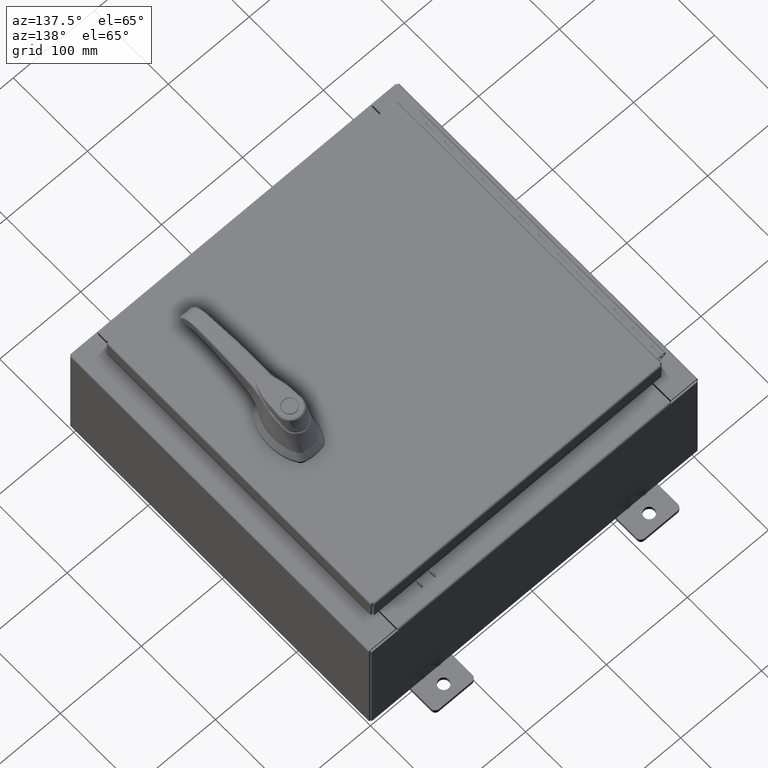
[diagram: clean part render]
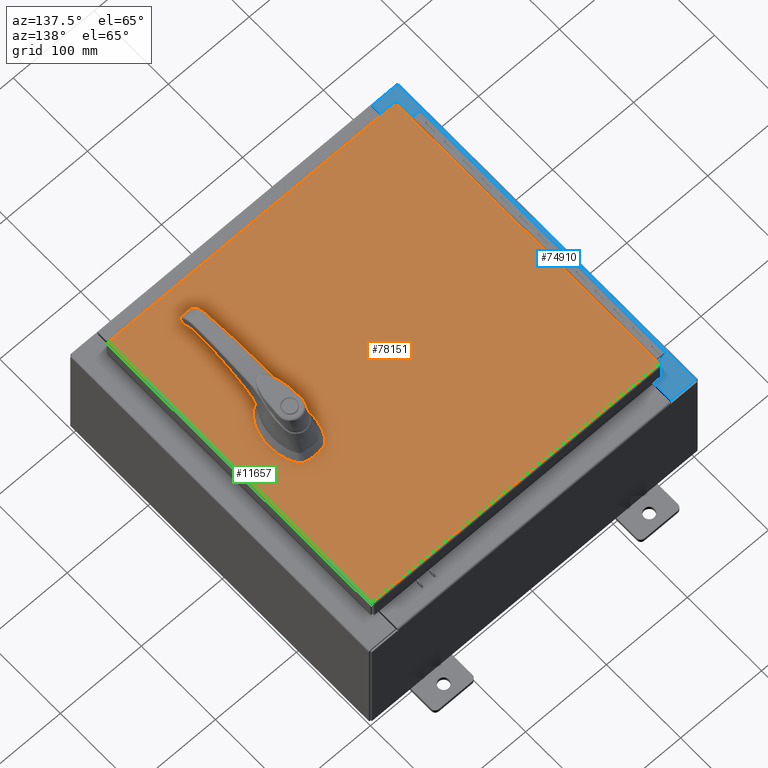
[diagram: same view with three faces highlighted in distinct colors, each labeled with its STEP entity id]
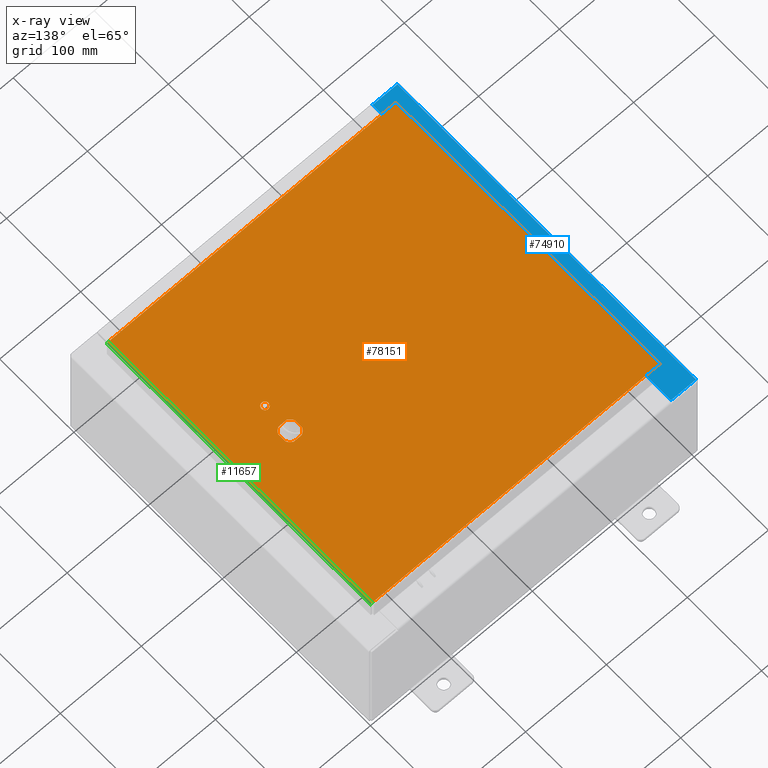
[diagram: x-ray of the same camera — body ghosted, the three highlighted faces saturated]
A machine part, auxiliary view with three faces highlighted in distinct colors.
The next image is the same camera in x-ray (body ghosted, the three faces saturated) — at least one of them is partly hidden behind the body in this view.
Their STEP definitions:

[orange] entity #78151 — the highlighted planar face has unit normal (0, 0, -1).
#1261 = EDGE_CURVE ( 'NONE', #103025, #10174, #66585, .T. ) ;
#1681 = DIRECTION ( 'NONE',  ( -1.000000000000000000, 0.0000000000000000000, -0.0000000000000000000 ) ) ;
#5276 = DIRECTION ( 'NONE',  ( 0.0000000000000000000, 1.000000000000000000, 0.0000000000000000000 ) ) ;
#5418 = DIRECTION ( 'NONE',  ( 1.000000000000000000, 0.0000000000000000000, 0.0000000000000000000 ) ) ;
#7371 = EDGE_CURVE ( 'NONE', #96301, #57104, #91769, .T. ) ;
#8099 = CARTESIAN_POINT ( 'NONE',  ( -6.990300000000001300, -7.006300000000000400, -2.219626494852214000E-016 ) ) ;
#8550 = VERTEX_POINT ( 'NONE', #89256 ) ;
#10174 = VERTEX_POINT ( 'NONE', #8099 ) ;
#10182 = VECTOR ( 'NONE', #23121, 39.37007874015748100 ) ;
#12258 = CARTESIAN_POINT ( 'NONE',  ( 4.778227370756312100, 0.4029999999999252000, 0.0000000000000000000 ) ) ;
#12527 = CARTESIAN_POINT ( 'NONE',  ( 6.990299999999998600, 7.006300000000000400, -2.219626494852214000E-016 ) ) ;
#13181 = CARTESIAN_POINT ( 'NONE',  ( -6.990300000000001300, 7.006300000000000400, 3.414809992080329000E-016 ) ) ;
#15286 = CARTESIAN_POINT ( 'NONE',  ( 4.980999999999927900, 0.0000000000000000000, 0.0000000000000000000 ) ) ;
#16409 = CIRCLE ( 'NONE', #16918, 0.4499999999999156900 ) ;
#16428 = CIRCLE ( 'NONE', #94112, 0.4499999999999156900 ) ;
#16918 = AXIS2_PLACEMENT_3D ( 'NONE', #104629, #55108, #5418 ) ;
#17763 = CARTESIAN_POINT ( 'NONE',  ( 4.377772629243692900, -0.4029999999999252000, 0.0000000000000000000 ) ) ;
#18027 = CARTESIAN_POINT ( 'NONE',  ( 4.578000000000002100, 0.0000000000000000000, 0.0000000000000000000 ) ) ;
#18421 = CIRCLE ( 'NONE', #45582, 0.4499999999999156900 ) ;
#18564 = EDGE_CURVE ( 'NONE', #34445, #83577, #27923, .T. ) ;
#22321 = EDGE_CURVE ( 'NONE', #8550, #25027, #18421, .T. ) ;
#22485 = EDGE_CURVE ( 'NONE', #25027, #66423, #98766, .T. ) ;
#22813 = CARTESIAN_POINT ( 'NONE',  ( 4.578000000000002100, -1.338000000000000100, 0.0000000000000000000 ) ) ;
#23121 = DIRECTION ( 'NONE',  ( 0.0000000000000000000, -1.000000000000000000, 0.0000000000000000000 ) ) ;
#25027 = VERTEX_POINT ( 'NONE', #17763 ) ;
#25055 = VECTOR ( 'NONE', #72100, 39.37007874015748100 ) ;
#26379 = DIRECTION ( 'NONE',  ( 1.000000000000000000, 0.0000000000000000000, 0.0000000000000000000 ) ) ;
#27923 = LINE ( 'NONE', #63294, #52585 ) ;
#29633 = EDGE_LOOP ( 'NONE', ( #60484, #36267, #40058, #63110, #46989, #83723, #85201, #31767 ) ) ;
#30257 = LINE ( 'NONE', #88685, #25055 ) ;
#31024 = ORIENTED_EDGE ( 'NONE', *, *, #91734, .T. ) ;
#31218 = DIRECTION ( 'NONE',  ( 1.000000000000000000, 0.0000000000000000000, 0.0000000000000000000 ) ) ;
#31726 = DIRECTION ( 'NONE',  ( -0.0000000000000000000, 0.0000000000000000000, 1.000000000000000000 ) ) ;
#31767 = ORIENTED_EDGE ( 'NONE', *, *, #35734, .F. ) ;
#34445 = VERTEX_POINT ( 'NONE', #78375 ) ;
#34709 = CARTESIAN_POINT ( 'NONE',  ( 0.0000000000000000000, 0.0000000000000000000, 0.0000000000000000000 ) ) ;
#35734 = EDGE_CURVE ( 'NONE', #70099, #93975, #16428, .T. ) ;
#36267 = ORIENTED_EDGE ( 'NONE', *, *, #45862, .F. ) ;
#36738 = VERTEX_POINT ( 'NONE', #75790 ) ;
#39261 = CARTESIAN_POINT ( 'NONE',  ( 4.749500000000002100, -1.338000000000000100, 0.0000000000000000000 ) ) ;
#39337 = CIRCLE ( 'NONE', #44304, 0.4499999999999156900 ) ;
#39825 = CARTESIAN_POINT ( 'NONE',  ( 4.578000000000002100, 0.0000000000000000000, 0.0000000000000000000 ) ) ;
#40058 = ORIENTED_EDGE ( 'NONE', *, *, #22485, .F. ) ;
#40138 = VERTEX_POINT ( 'NONE', #53096 ) ;
#40231 = CARTESIAN_POINT ( 'NONE',  ( 4.175000000000076200, 0.2002273707563079800, 0.0000000000000000000 ) ) ;
#40900 = DIRECTION ( 'NONE',  ( 1.000000000000000000, 0.0000000000000000000, 0.0000000000000000000 ) ) ;
#44304 = AXIS2_PLACEMENT_3D ( 'NONE', #47098, #104913, #55409 ) ;
#44850 = VERTEX_POINT ( 'NONE', #40231 ) ;
#45582 = AXIS2_PLACEMENT_3D ( 'NONE', #39825, #97663, #48190 ) ;
#45862 = EDGE_CURVE ( 'NONE', #66423, #40138, #16409, .T. ) ;
#46075 = EDGE_CURVE ( 'NONE', #10174, #34445, #88943, .T. ) ;
#46989 = ORIENTED_EDGE ( 'NONE', *, *, #100965, .F. ) ;
#47098 = CARTESIAN_POINT ( 'NONE',  ( 4.578000000000002100, 0.0000000000000000000, 0.0000000000000000000 ) ) ;
#47161 = VECTOR ( 'NONE', #104410, 39.37007874015748100 ) ;
#48190 = DIRECTION ( 'NONE',  ( 1.000000000000000000, 0.0000000000000000000, 0.0000000000000000000 ) ) ;
#49271 = CARTESIAN_POINT ( 'NONE',  ( 0.0000000000000000000, -0.4029999999999252000, 0.0000000000000000000 ) ) ;
#50016 = FACE_OUTER_BOUND ( 'NONE', #79957, .T. ) ;
#50977 = VECTOR ( 'NONE', #78834, 39.37007874015748100 ) ;
#51008 = CARTESIAN_POINT ( 'NONE',  ( 4.980999999999927900, 0.2002273707563080300, 0.0000000000000000000 ) ) ;
#51369 = DIRECTION ( 'NONE',  ( 0.0000000000000000000, 0.0000000000000000000, -1.000000000000000000 ) ) ;
#51600 = EDGE_CURVE ( 'NONE', #36738, #44850, #39337, .T. ) ;
#52571 = FACE_BOUND ( 'NONE', #29633, .T. ) ;
#52585 = VECTOR ( 'NONE', #5276, 39.37007874015748100 ) ;
#53096 = CARTESIAN_POINT ( 'NONE',  ( 4.980999999999927900, -0.2002273707563079800, 0.0000000000000000000 ) ) ;
#54826 = EDGE_CURVE ( 'NONE', #70099, #40138, #75276, .T. ) ;
#55108 = DIRECTION ( 'NONE',  ( -0.0000000000000000000, 0.0000000000000000000, 1.000000000000000000 ) ) ;
#55186 = FACE_BOUND ( 'NONE', #62067, .T. ) ;
#55353 = AXIS2_PLACEMENT_3D ( 'NONE', #22813, #80778, #31218 ) ;
#55409 = DIRECTION ( 'NONE',  ( 1.000000000000000000, 0.0000000000000000000, 0.0000000000000000000 ) ) ;
#55507 = AXIS2_PLACEMENT_3D ( 'NONE', #34709, #51369, #1681 ) ;
#56633 = DIRECTION ( 'NONE',  ( 0.0000000000000000000, -1.000000000000000000, 0.0000000000000000000 ) ) ;
#56966 = LINE ( 'NONE', #72772, #10182 ) ;
#57104 = VERTEX_POINT ( 'NONE', #39261 ) ;
#57852 = CARTESIAN_POINT ( 'NONE',  ( -6.990300000000001300, -7.006300000000000400, -2.219626494852214000E-016 ) ) ;
#60484 = ORIENTED_EDGE ( 'NONE', *, *, #54826, .T. ) ;
#62067 = EDGE_LOOP ( 'NONE', ( #92656, #96490 ) ) ;
#63110 = ORIENTED_EDGE ( 'NONE', *, *, #22321, .F. ) ;
#63294 = CARTESIAN_POINT ( 'NONE',  ( 6.990299999999998600, -7.006300000000000400, -2.219626494852214000E-016 ) ) ;
#65094 = CARTESIAN_POINT ( 'NONE',  ( 6.990299999999998600, 7.006300000000000400, -2.219626494852214000E-016 ) ) ;
#66423 = VERTEX_POINT ( 'NONE', #72660 ) ;
#66585 = LINE ( 'NONE', #13181, #47161 ) ;
#67656 = PLANE ( 'NONE',  #55507 ) ;
#70099 = VERTEX_POINT ( 'NONE', #51008 ) ;
#72100 = DIRECTION ( 'NONE',  ( -1.000000000000000000, 0.0000000000000000000, 0.0000000000000000000 ) ) ;
#72660 = CARTESIAN_POINT ( 'NONE',  ( 4.778227370756312100, -0.4029999999999252000, 0.0000000000000000000 ) ) ;
#72691 = VECTOR ( 'NONE', #56633, 39.37007874015748100 ) ;
#72772 = CARTESIAN_POINT ( 'NONE',  ( 4.175000000000076200, 0.0000000000000000000, 0.0000000000000000000 ) ) ;
#74220 = VECTOR ( 'NONE', #40900, 39.37007874015748100 ) ;
#74435 = CIRCLE ( 'NONE', #55353, 0.1715000000000000700 ) ;
#75276 = LINE ( 'NONE', #15286, #72691 ) ;
#75567 = LINE ( 'NONE', #12527, #50977 ) ;
#75790 = CARTESIAN_POINT ( 'NONE',  ( 4.377772629243692900, 0.4029999999999252000, 0.0000000000000000000 ) ) ;
#76006 = DIRECTION ( 'NONE',  ( -0.0000000000000000000, 0.0000000000000000000, 1.000000000000000000 ) ) ;
#76580 = CARTESIAN_POINT ( 'NONE',  ( -6.990300000000001300, 7.006300000000000400, 3.414809992080329000E-016 ) ) ;
#78151 = ADVANCED_FACE ( 'NONE', ( #55186, #50016, #52571 ), #67656, .F. ) ;
#78375 = CARTESIAN_POINT ( 'NONE',  ( 6.990299999999998600, -7.006300000000000400, -2.219626494852214000E-016 ) ) ;
#78834 = DIRECTION ( 'NONE',  ( -1.000000000000000000, -0.0000000000000000000, -0.0000000000000000000 ) ) ;
#79957 = EDGE_LOOP ( 'NONE', ( #86895, #96609, #31024, #92197 ) ) ;
#80778 = DIRECTION ( 'NONE',  ( -0.0000000000000000000, 0.0000000000000000000, 1.000000000000000000 ) ) ;
#81296 = CARTESIAN_POINT ( 'NONE',  ( 4.578000000000002100, -1.338000000000000100, 0.0000000000000000000 ) ) ;
#83577 = VERTEX_POINT ( 'NONE', #65094 ) ;
#83723 = ORIENTED_EDGE ( 'NONE', *, *, #51600, .F. ) ;
#85201 = ORIENTED_EDGE ( 'NONE', *, *, #91331, .F. ) ;
#86895 = ORIENTED_EDGE ( 'NONE', *, *, #46075, .T. ) ;
#87840 = AXIS2_PLACEMENT_3D ( 'NONE', #81296, #31726, #89589 ) ;
#88685 = CARTESIAN_POINT ( 'NONE',  ( 0.0000000000000000000, 0.4029999999999252000, 0.0000000000000000000 ) ) ;
#88943 = LINE ( 'NONE', #57852, #91562 ) ;
#89256 = CARTESIAN_POINT ( 'NONE',  ( 4.175000000000076200, -0.2002273707563079800, 0.0000000000000000000 ) ) ;
#89589 = DIRECTION ( 'NONE',  ( 1.000000000000000000, 0.0000000000000000000, 0.0000000000000000000 ) ) ;
#90461 = EDGE_CURVE ( 'NONE', #57104, #96301, #74435, .T. ) ;
#91331 = EDGE_CURVE ( 'NONE', #93975, #36738, #30257, .T. ) ;
#91562 = VECTOR ( 'NONE', #94369, 39.37007874015748100 ) ;
#91734 = EDGE_CURVE ( 'NONE', #83577, #103025, #75567, .T. ) ;
#91769 = CIRCLE ( 'NONE', #87840, 0.1715000000000000700 ) ;
#92197 = ORIENTED_EDGE ( 'NONE', *, *, #1261, .T. ) ;
#92656 = ORIENTED_EDGE ( 'NONE', *, *, #90461, .F. ) ;
#92927 = CARTESIAN_POINT ( 'NONE',  ( 4.406500000000002100, -1.338000000000000100, 0.0000000000000000000 ) ) ;
#93975 = VERTEX_POINT ( 'NONE', #12258 ) ;
#94112 = AXIS2_PLACEMENT_3D ( 'NONE', #18027, #76006, #26379 ) ;
#94369 = DIRECTION ( 'NONE',  ( 1.000000000000000000, -0.0000000000000000000, -0.0000000000000000000 ) ) ;
#96301 = VERTEX_POINT ( 'NONE', #92927 ) ;
#96490 = ORIENTED_EDGE ( 'NONE', *, *, #7371, .F. ) ;
#96609 = ORIENTED_EDGE ( 'NONE', *, *, #18564, .T. ) ;
#97663 = DIRECTION ( 'NONE',  ( -0.0000000000000000000, 0.0000000000000000000, 1.000000000000000000 ) ) ;
#98766 = LINE ( 'NONE', #49271, #74220 ) ;
#100965 = EDGE_CURVE ( 'NONE', #44850, #8550, #56966, .T. ) ;
#103025 = VERTEX_POINT ( 'NONE', #76580 ) ;
#104410 = DIRECTION ( 'NONE',  ( 0.0000000000000000000, -1.000000000000000000, 0.0000000000000000000 ) ) ;
#104629 = CARTESIAN_POINT ( 'NONE',  ( 4.578000000000002100, 0.0000000000000000000, 0.0000000000000000000 ) ) ;
#104913 = DIRECTION ( 'NONE',  ( -0.0000000000000000000, 0.0000000000000000000, 1.000000000000000000 ) ) ;

[blue] entity #74910 — the highlighted planar face has unit normal (0, 0, -1).
#880 = VECTOR ( 'NONE', #90787, 39.37007874015748100 ) ;
#2505 = ORIENTED_EDGE ( 'NONE', *, *, #93108, .F. ) ;
#3280 = CIRCLE ( 'NONE', #39943, 0.01867500000000058700 ) ;
#4822 = CARTESIAN_POINT ( 'NONE',  ( -6.699700000000021300, -3.231034617030575100E-030, 5.925300000000008000 ) ) ;
#8561 = VERTEX_POINT ( 'NONE', #73021 ) ;
#8812 = DIRECTION ( 'NONE',  ( -1.000000000000000000, 0.0000000000000000000, 0.0000000000000000000 ) ) ;
#9818 = DIRECTION ( 'NONE',  ( 7.132762385546378400E-015, 0.0000000000000000000, -1.000000000000000000 ) ) ;
#11257 = ORIENTED_EDGE ( 'NONE', *, *, #19978, .F. ) ;
#13151 = DIRECTION ( 'NONE',  ( -4.822655666717293700E-031, 1.000000000000000000, -3.439885693800320600E-045 ) ) ;
#13595 = VECTOR ( 'NONE', #36157, 39.37007874015748100 ) ;
#17062 = ORIENTED_EDGE ( 'NONE', *, *, #51018, .F. ) ;
#18755 = LINE ( 'NONE', #61156, #13595 ) ;
#19978 = EDGE_CURVE ( 'NONE', #96303, #63326, #73186, .T. ) ;
#22494 = DIRECTION ( 'NONE',  ( 1.000000000000000000, 8.758115402030108600E-047, 7.132762385546378400E-015 ) ) ;
#23056 = DIRECTION ( 'NONE',  ( -7.132762385546378400E-015, -0.0000000000000000000, 1.000000000000000000 ) ) ;
#24545 = CARTESIAN_POINT ( 'NONE',  ( -4.252457061908993700E-014, 7.925299999999998200, 5.925300000000056000 ) ) ;
#25053 = CARTESIAN_POINT ( 'NONE',  ( -6.699700000000021300, -7.925300000000000000, 5.925300000000008000 ) ) ;
#26526 = EDGE_CURVE ( 'NONE', #33312, #32952, #31561, .T. ) ;
#27512 = CARTESIAN_POINT ( 'NONE',  ( -6.750050000000023000, -6.612424999999998200, 5.925300000000008000 ) ) ;
#28092 = LINE ( 'NONE', #24545, #880 ) ;
#28630 = LINE ( 'NONE', #94327, #89518 ) ;
#29124 = VECTOR ( 'NONE', #13151, 39.37007874015748100 ) ;
#30425 = ORIENTED_EDGE ( 'NONE', *, *, #48349, .T. ) ;
#30889 = EDGE_CURVE ( 'NONE', #53303, #8561, #84151, .T. ) ;
#31561 = LINE ( 'NONE', #91137, #73002 ) ;
#31871 = CARTESIAN_POINT ( 'NONE',  ( -6.712700000000023000, 6.593749999999999100, 5.925300000000008000 ) ) ;
#32952 = VERTEX_POINT ( 'NONE', #101303 ) ;
#33312 = VERTEX_POINT ( 'NONE', #56103 ) ;
#33502 = CARTESIAN_POINT ( 'NONE',  ( -6.712700000000023000, -6.593749999999999100, 5.925300000000008000 ) ) ;
#34160 = PLANE ( 'NONE',  #81415 ) ;
#34225 = CARTESIAN_POINT ( 'NONE',  ( -6.699700000000021300, -3.231034617030575100E-030, 5.925300000000008000 ) ) ;
#35056 = CARTESIAN_POINT ( 'NONE',  ( -6.712700000000023000, -6.593749999999999100, 5.925300000000008000 ) ) ;
#35866 = DIRECTION ( 'NONE',  ( 1.000000000000000000, 0.0000000000000000000, 0.0000000000000000000 ) ) ;
#36052 = EDGE_CURVE ( 'NONE', #60551, #8561, #28092, .T. ) ;
#36157 = DIRECTION ( 'NONE',  ( -0.0000000000000000000, -1.000000000000000000, -0.0000000000000000000 ) ) ;
#36464 = DIRECTION ( 'NONE',  ( -1.000000000000000000, -2.170286390199955400E-014, 0.0000000000000000000 ) ) ;
#39402 = ORIENTED_EDGE ( 'NONE', *, *, #30889, .F. ) ;
#39943 = AXIS2_PLACEMENT_3D ( 'NONE', #27512, #85407, #35866 ) ;
#40691 = CIRCLE ( 'NONE', #40824, 0.01867500000000058700 ) ;
#40824 = AXIS2_PLACEMENT_3D ( 'NONE', #72700, #23056, #80997 ) ;
#41228 = CARTESIAN_POINT ( 'NONE',  ( -7.912300000000021400, 7.925299999999998200, 5.925299999999999100 ) ) ;
#41601 = DIRECTION ( 'NONE',  ( 1.000000000000000000, -2.170286390199955400E-014, 0.0000000000000000000 ) ) ;
#48349 = EDGE_CURVE ( 'NONE', #59386, #60551, #95137, .T. ) ;
#48754 = ORIENTED_EDGE ( 'NONE', *, *, #71612, .F. ) ;
#49429 = VERTEX_POINT ( 'NONE', #75486 ) ;
#49767 = LINE ( 'NONE', #72163, #61359 ) ;
#49904 = CARTESIAN_POINT ( 'NONE',  ( -6.699700000000021300, 7.925299999999998200, 5.925300000000008000 ) ) ;
#51018 = EDGE_CURVE ( 'NONE', #49429, #96405, #40691, .T. ) ;
#51158 = VECTOR ( 'NONE', #8812, 39.37007874015748100 ) ;
#52799 = CARTESIAN_POINT ( 'NONE',  ( -6.750050000000023000, 6.593749999999999100, 5.925300000000008000 ) ) ;
#53303 = VERTEX_POINT ( 'NONE', #63255 ) ;
#56103 = CARTESIAN_POINT ( 'NONE',  ( -6.750050000000023000, -6.631099999999999100, 5.925300000000008000 ) ) ;
#56250 = EDGE_CURVE ( 'NONE', #96405, #94258, #98395, .T. ) ;
#57328 = VERTEX_POINT ( 'NONE', #25053 ) ;
#57714 = ORIENTED_EDGE ( 'NONE', *, *, #36052, .T. ) ;
#59386 = VERTEX_POINT ( 'NONE', #88492 ) ;
#59527 = CARTESIAN_POINT ( 'NONE',  ( -4.252457061908993700E-014, 0.0000000000000000000, 5.925300000000056000 ) ) ;
#60551 = VERTEX_POINT ( 'NONE', #49904 ) ;
#61156 = CARTESIAN_POINT ( 'NONE',  ( -6.712700000000023000, 6.593749999999999100, 5.925300000000008000 ) ) ;
#61359 = VECTOR ( 'NONE', #22494, 39.37007874015748100 ) ;
#63255 = CARTESIAN_POINT ( 'NONE',  ( -7.912300000000022300, -7.925300000000000000, 5.925299999999999100 ) ) ;
#63326 = VERTEX_POINT ( 'NONE', #86219 ) ;
#66595 = EDGE_CURVE ( 'NONE', #57328, #32952, #83350, .T. ) ;
#67812 = DIRECTION ( 'NONE',  ( -1.000000000000000000, 0.0000000000000000000, -7.132762385546378400E-015 ) ) ;
#71612 = EDGE_CURVE ( 'NONE', #59386, #49429, #28630, .T. ) ;
#72163 = CARTESIAN_POINT ( 'NONE',  ( -4.252457061908993700E-014, -7.925300000000000000, 5.925300000000056000 ) ) ;
#72700 = CARTESIAN_POINT ( 'NONE',  ( -6.750050000000023000, 6.612424999999998200, 5.925300000000008000 ) ) ;
#73002 = VECTOR ( 'NONE', #41601, 39.37007874015748100 ) ;
#73021 = CARTESIAN_POINT ( 'NONE',  ( -7.912300000000022300, 7.925299999999998200, 5.925299999999999100 ) ) ;
#73186 = LINE ( 'NONE', #33502, #51158 ) ;
#74591 = ORIENTED_EDGE ( 'NONE', *, *, #56250, .F. ) ;
#74910 = ADVANCED_FACE ( 'NONE', ( #90457 ), #34160, .F. ) ;
#75486 = CARTESIAN_POINT ( 'NONE',  ( -6.750050000000023000, 6.631099999999998200, 5.925300000000008000 ) ) ;
#76398 = VECTOR ( 'NONE', #80982, 39.37007874015748100 ) ;
#79045 = ORIENTED_EDGE ( 'NONE', *, *, #26526, .F. ) ;
#79535 = EDGE_LOOP ( 'NONE', ( #48754, #30425, #57714, #39402, #88148, #105057, #79045, #87161, #11257, #2505, #74591, #17062 ) ) ;
#80982 = DIRECTION ( 'NONE',  ( 1.000000000000000000, 0.0000000000000000000, 0.0000000000000000000 ) ) ;
#80997 = DIRECTION ( 'NONE',  ( 1.000000000000000000, 0.0000000000000000000, 0.0000000000000000000 ) ) ;
#81415 = AXIS2_PLACEMENT_3D ( 'NONE', #59527, #9818, #67812 ) ;
#81759 = DIRECTION ( 'NONE',  ( 6.893992640440775600E-017, 1.000000000000000000, 4.917321139196952400E-031 ) ) ;
#83350 = LINE ( 'NONE', #34225, #102749 ) ;
#83782 = DIRECTION ( 'NONE',  ( -4.822655666717293700E-031, 1.000000000000000000, -3.439885693800320600E-045 ) ) ;
#84151 = LINE ( 'NONE', #41228, #103570 ) ;
#85407 = DIRECTION ( 'NONE',  ( -7.132762385546378400E-015, -0.0000000000000000000, 1.000000000000000000 ) ) ;
#86219 = CARTESIAN_POINT ( 'NONE',  ( -6.750050000000023000, -6.593749999999999100, 5.925300000000008000 ) ) ;
#87161 = ORIENTED_EDGE ( 'NONE', *, *, #88522, .F. ) ;
#88148 = ORIENTED_EDGE ( 'NONE', *, *, #95323, .T. ) ;
#88492 = CARTESIAN_POINT ( 'NONE',  ( -6.699700000000021300, 6.631100000000000000, 5.925300000000008000 ) ) ;
#88522 = EDGE_CURVE ( 'NONE', #63326, #33312, #3280, .T. ) ;
#89518 = VECTOR ( 'NONE', #36464, 39.37007874015748100 ) ;
#90457 = FACE_OUTER_BOUND ( 'NONE', #79535, .T. ) ;
#90787 = DIRECTION ( 'NONE',  ( -1.000000000000000000, -6.146651423996189400E-032, -7.132762385546378400E-015 ) ) ;
#91137 = CARTESIAN_POINT ( 'NONE',  ( -6.750050000000023000, -6.631099999999999100, 5.925300000000008000 ) ) ;
#93108 = EDGE_CURVE ( 'NONE', #94258, #96303, #18755, .T. ) ;
#94258 = VERTEX_POINT ( 'NONE', #31871 ) ;
#94327 = CARTESIAN_POINT ( 'NONE',  ( -6.699700000000021300, 6.631100000000000000, 5.925300000000008000 ) ) ;
#95137 = LINE ( 'NONE', #4822, #29124 ) ;
#95323 = EDGE_CURVE ( 'NONE', #53303, #57328, #49767, .T. ) ;
#96303 = VERTEX_POINT ( 'NONE', #35056 ) ;
#96405 = VERTEX_POINT ( 'NONE', #52799 ) ;
#98395 = LINE ( 'NONE', #105195, #76398 ) ;
#101303 = CARTESIAN_POINT ( 'NONE',  ( -6.699700000000021300, -6.631100000000000900, 5.925300000000008000 ) ) ;
#102749 = VECTOR ( 'NONE', #83782, 39.37007874015748100 ) ;
#103570 = VECTOR ( 'NONE', #81759, 39.37007874015748100 ) ;
#105057 = ORIENTED_EDGE ( 'NONE', *, *, #66595, .T. ) ;
#105195 = CARTESIAN_POINT ( 'NONE',  ( -6.750050000000023000, 6.593749999999999100, 5.925300000000008000 ) ) ;

[green] entity #11657 — the highlighted cylindrical surface (edge-blend (fillet) strip) has radius 2.2276 mm, axis along (-0, -1, -0).
#624 = AXIS2_PLACEMENT_3D ( 'NONE', #83319, #66751, #33786 ) ;
#2359 = CARTESIAN_POINT ( 'NONE',  ( 7.044195747341800200, 7.005824110156779300, -0.01756921792167975800 ) ) ;
#3753 = CARTESIAN_POINT ( 'NONE',  ( 7.078000000000000300, -7.005253042344914900, -0.07622009684500727400 ) ) ;
#5276 = DIRECTION ( 'NONE',  ( 0.0000000000000000000, 1.000000000000000000, 0.0000000000000000000 ) ) ;
#10663 = CARTESIAN_POINT ( 'NONE',  ( 7.066931066258666400, 7.005538576250847500, -0.04353261542147220100 ) ) ;
#10684 = ORIENTED_EDGE ( 'NONE', *, *, #99932, .F. ) ;
#11657 = ADVANCED_FACE ( 'NONE', ( #20681 ), #103607, .T. ) ;
#12075 = CARTESIAN_POINT ( 'NONE',  ( 7.077999999999999400, -7.005157864376269700, -0.08769999999999997200 ) ) ;
#18275 = CARTESIAN_POINT ( 'NONE',  ( 6.990299999999998600, 7.006300000000000400, -2.219626494852214000E-016 ) ) ;
#18564 = EDGE_CURVE ( 'NONE', #34445, #83577, #27923, .T. ) ;
#18993 = CARTESIAN_POINT ( 'NONE',  ( 7.077999999999999400, 7.005253042344914900, -0.07622009684500730100 ) ) ;
#20384 = CARTESIAN_POINT ( 'NONE',  ( 7.075717403743810000, -7.005348220313559100, -0.06474471054169114700 ) ) ;
#20681 = FACE_OUTER_BOUND ( 'NONE', #21869, .T. ) ;
#21458 = ORIENTED_EDGE ( 'NONE', *, *, #18564, .F. ) ;
#21869 = EDGE_LOOP ( 'NONE', ( #21458, #93414, #86171, #10684 ) ) ;
#25466 = B_SPLINE_CURVE_WITH_KNOTS ( 'NONE', 3,
 ( #18275, #84904, #101540, #52022, #2359, #60357, #10663, #68675, #18993, #76964 ),
 .UNSPECIFIED., .F., .F.,
 ( 4, 2, 2, 2, 4 ),
 ( 0.0000000000000000000, 0.2500000000000000000, 0.5000000000000000000, 0.7500000000000000000, 1.000000000000000000 ),
 .UNSPECIFIED. ) ;
#27923 = LINE ( 'NONE', #63294, #52585 ) ;
#28765 = CARTESIAN_POINT ( 'NONE',  ( 7.060430782078321400, -7.005633754219491700, -0.03380425265820006400 ) ) ;
#33786 = DIRECTION ( 'NONE',  ( 1.000000000000000000, 0.0000000000000000000, 3.893740013774593800E-015 ) ) ;
#34445 = VERTEX_POINT ( 'NONE', #78375 ) ;
#37119 = CARTESIAN_POINT ( 'NONE',  ( 7.034467384578528400, -7.005919288125422600, -0.01106893374133177300 ) ) ;
#40696 = VECTOR ( 'NONE', #45170, 39.37007874015748100 ) ;
#45170 = DIRECTION ( 'NONE',  ( 0.0000000000000000000, -1.000000000000000000, 0.0000000000000000000 ) ) ;
#45475 = CARTESIAN_POINT ( 'NONE',  ( 7.001779903154991700, -7.006204822031357100, -2.224295180388261000E-016 ) ) ;
#51508 = VERTEX_POINT ( 'NONE', #77094 ) ;
#52022 = CARTESIAN_POINT ( 'NONE',  ( 7.034467384578526600, 7.005919288125420900, -0.01106893374133177300 ) ) ;
#52585 = VECTOR ( 'NONE', #5276, 39.37007874015748100 ) ;
#53695 = EDGE_CURVE ( 'NONE', #85995, #34445, #88137, .T. ) ;
#60357 = CARTESIAN_POINT ( 'NONE',  ( 7.060430782078318800, 7.005633754219490000, -0.03380425265820006400 ) ) ;
#63294 = CARTESIAN_POINT ( 'NONE',  ( 6.990299999999998600, -7.006300000000000400, -2.219626494852214000E-016 ) ) ;
#65094 = CARTESIAN_POINT ( 'NONE',  ( 6.990299999999998600, 7.006300000000000400, -2.219626494852214000E-016 ) ) ;
#66751 = DIRECTION ( 'NONE',  ( -0.0000000000000000000, -1.000000000000000000, -0.0000000000000000000 ) ) ;
#68675 = CARTESIAN_POINT ( 'NONE',  ( 7.075717403743811800, 7.005348220313559100, -0.06474471054169114700 ) ) ;
#76964 = CARTESIAN_POINT ( 'NONE',  ( 7.077999999999999400, 7.005157864376269700, -0.08769999999999997200 ) ) ;
#77094 = CARTESIAN_POINT ( 'NONE',  ( 7.077999999999999400, 7.005157864376269700, -0.08769999999999997200 ) ) ;
#78362 = CARTESIAN_POINT ( 'NONE',  ( 7.066931066258665500, -7.005538576250844900, -0.04353261542147220100 ) ) ;
#78375 = CARTESIAN_POINT ( 'NONE',  ( 6.990299999999998600, -7.006300000000000400, -2.219626494852214000E-016 ) ) ;
#82116 = LINE ( 'NONE', #94665, #40696 ) ;
#83319 = CARTESIAN_POINT ( 'NONE',  ( 6.990299999999998600, -7.006300000000000400, -0.08770000000000031900 ) ) ;
#83577 = VERTEX_POINT ( 'NONE', #65094 ) ;
#84904 = CARTESIAN_POINT ( 'NONE',  ( 7.001779903154992500, 7.006204822031357100, -2.229964298539175300E-016 ) ) ;
#85995 = VERTEX_POINT ( 'NONE', #104462 ) ;
#86171 = ORIENTED_EDGE ( 'NONE', *, *, #94849, .F. ) ;
#86662 = CARTESIAN_POINT ( 'NONE',  ( 7.044195747341800200, -7.005824110156780200, -0.01756921792167976200 ) ) ;
#88137 = B_SPLINE_CURVE_WITH_KNOTS ( 'NONE', 3,
 ( #12075, #3753, #20384, #78362, #28765, #86662, #37119, #94962, #45475, #103326 ),
 .UNSPECIFIED., .F., .F.,
 ( 4, 2, 2, 2, 4 ),
 ( 0.0000000000000000000, 0.2500000000000000000, 0.5000000000000000000, 0.7500000000000000000, 1.000000000000000000 ),
 .UNSPECIFIED. ) ;
#93414 = ORIENTED_EDGE ( 'NONE', *, *, #53695, .F. ) ;
#94665 = CARTESIAN_POINT ( 'NONE',  ( 7.077999999999999400, 0.0000000000000000000, -0.08769999999999997200 ) ) ;
#94849 = EDGE_CURVE ( 'NONE', #51508, #85995, #82116, .T. ) ;
#94962 = CARTESIAN_POINT ( 'NONE',  ( 7.013255289458310700, -7.006109644062711100, -0.002282596256188945500 ) ) ;
#99932 = EDGE_CURVE ( 'NONE', #83577, #51508, #25466, .T. ) ;
#101540 = CARTESIAN_POINT ( 'NONE',  ( 7.013255289458309800, 7.006109644062711100, -0.002282596256188945100 ) ) ;
#103326 = CARTESIAN_POINT ( 'NONE',  ( 6.990299999999998600, -7.006300000000000400, -2.219626494852214000E-016 ) ) ;
#103607 = CYLINDRICAL_SURFACE ( 'NONE', #624, 0.08770000000000026400 ) ;
#104462 = CARTESIAN_POINT ( 'NONE',  ( 7.077999999999999400, -7.005157864376269700, -0.08769999999999997200 ) ) ;